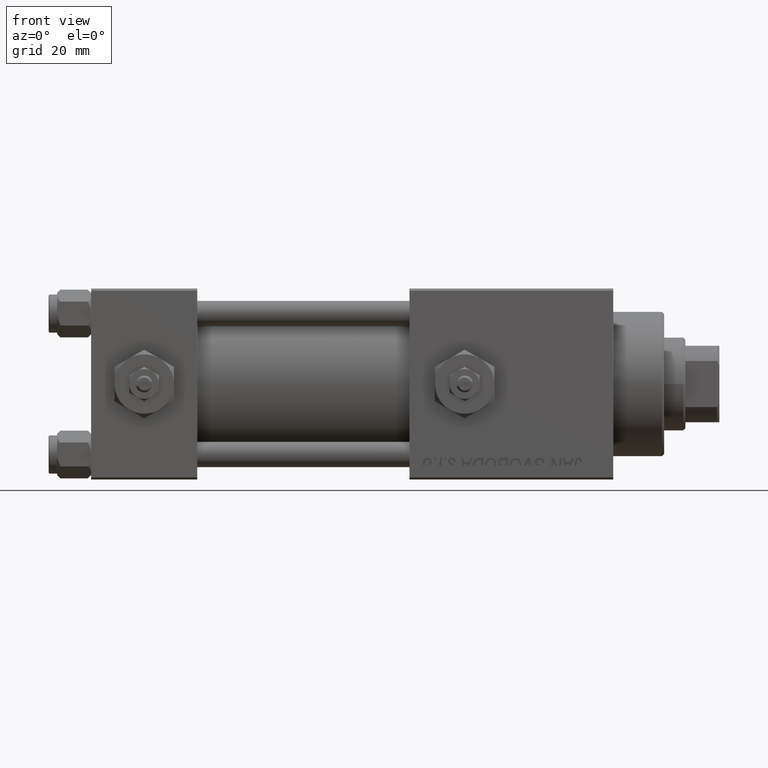
[diagram: clean part render]
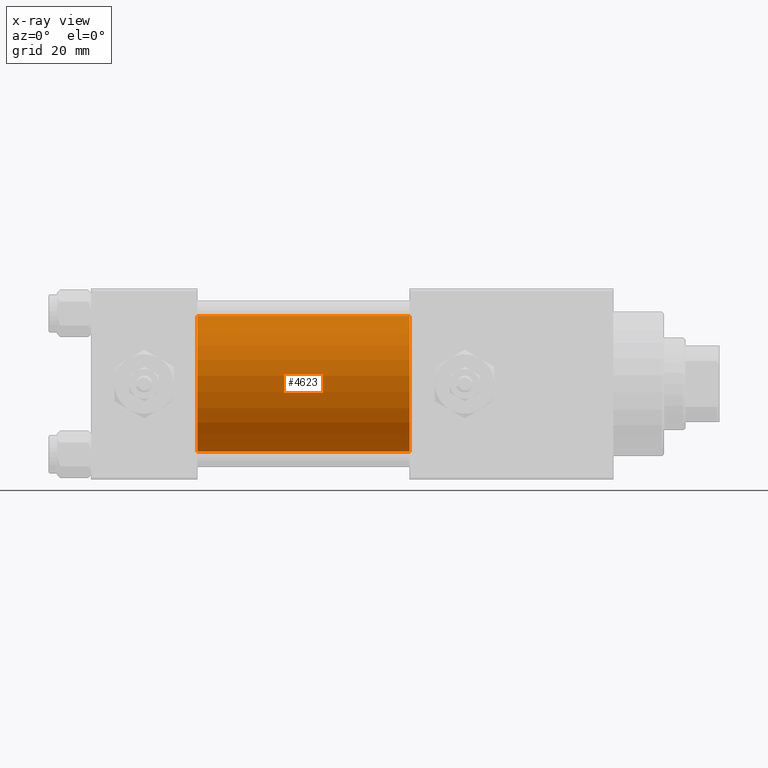
[diagram: x-ray — body ghosted, one internal face saturated and labeled with its STEP entity id]
A machine part, front view, then the same camera in x-ray: the body is ghosted and one INTERNAL B-rep face — a face not visible from any outside direction — is saturated and labeled: STEP entity #4623.
In plain terms, the highlighted cylindrical surface (partial cylindrical patch) has radius 16 mm, axis along (-1, -0, -0).
Its self-contained STEP definition (entity closure, byte-faithful):
#2117 = FACE_OUTER_BOUND ( 'NONE', #37450, .T. ) ;
#3248 = DIRECTION ( 'NONE',  ( 1.000000000000000000, 0.000000000000000000, 0.000000000000000000 ) ) ;
#4615 = LINE ( 'NONE', #49684, #12824 ) ;
#4623 = ADVANCED_FACE ( 'NONE', ( #2117 ), #18220, .F. ) ;
#6047 = VERTEX_POINT ( 'NONE', #11310 ) ;
#6295 = CIRCLE ( 'NONE', #11389, 16.00000000000000000 ) ;
#8407 = EDGE_CURVE ( 'NONE', #31739, #11296, #35475, .T. ) ;
#11296 = VERTEX_POINT ( 'NONE', #13542 ) ;
#11310 = CARTESIAN_POINT ( 'NONE',  ( 75.00000000000001421, -2.602085213965210642E-15, 16.00000000000000000 ) ) ;
#11389 = AXIS2_PLACEMENT_3D ( 'NONE', #18574, #3248, #50752 ) ;
#12371 = VERTEX_POINT ( 'NONE', #51790 ) ;
#12638 = EDGE_CURVE ( 'NONE', #6047, #31739, #28979, .T. ) ;
#12824 = VECTOR ( 'NONE', #20706, 1000.000000000000000 ) ;
#13542 = CARTESIAN_POINT ( 'NONE',  ( 25.00000000000000000, -6.426503353294456087E-16, -16.00000000000000000 ) ) ;
#14783 = DIRECTION ( 'NONE',  ( -1.000000000000000000, -0.000000000000000000, -0.000000000000000000 ) ) ;
#15069 = CARTESIAN_POINT ( 'NONE',  ( 75.00000000000001421, -2.602085213965210642E-15, 0.000000000000000000 ) ) ;
#18220 = CYLINDRICAL_SURFACE ( 'NONE', #47389, 16.00000000000000000 ) ;
#18574 = CARTESIAN_POINT ( 'NONE',  ( 25.00000000000000000, -2.602085213965210642E-15, 0.000000000000000000 ) ) ;
#20706 = DIRECTION ( 'NONE',  ( -1.000000000000000000, -0.000000000000000000, -0.000000000000000000 ) ) ;
#21092 = DIRECTION ( 'NONE',  ( 0.000000000000000000, 0.000000000000000000, -1.000000000000000000 ) ) ;
#23863 = CARTESIAN_POINT ( 'NONE',  ( 75.00000000000001421, -6.426503353294456087E-16, -16.00000000000000000 ) ) ;
#28979 = CIRCLE ( 'NONE', #35747, 16.00000000000000000 ) ;
#30794 = EDGE_CURVE ( 'NONE', #6047, #12371, #4615, .T. ) ;
#31739 = VERTEX_POINT ( 'NONE', #50402 ) ;
#33720 = ORIENTED_EDGE ( 'NONE', *, *, #12638, .T. ) ;
#33858 = ORIENTED_EDGE ( 'NONE', *, *, #30794, .F. ) ;
#34826 = CARTESIAN_POINT ( 'NONE',  ( 75.00000000000001421, -2.602085213965210642E-15, 0.000000000000000000 ) ) ;
#35475 = LINE ( 'NONE', #23863, #49894 ) ;
#35747 = AXIS2_PLACEMENT_3D ( 'NONE', #15069, #36159, #21092 ) ;
#36159 = DIRECTION ( 'NONE',  ( 1.000000000000000000, 0.000000000000000000, 0.000000000000000000 ) ) ;
#37435 = EDGE_CURVE ( 'NONE', #12371, #11296, #6295, .T. ) ;
#37450 = EDGE_LOOP ( 'NONE', ( #33720, #42455, #39799, #33858 ) ) ;
#39799 = ORIENTED_EDGE ( 'NONE', *, *, #37435, .F. ) ;
#42455 = ORIENTED_EDGE ( 'NONE', *, *, #8407, .T. ) ;
#45657 = DIRECTION ( 'NONE',  ( 0.000000000000000000, 0.000000000000000000, 1.000000000000000000 ) ) ;
#47389 = AXIS2_PLACEMENT_3D ( 'NONE', #34826, #14783, #45657 ) ;
#49684 = CARTESIAN_POINT ( 'NONE',  ( 75.00000000000001421, -2.602085213965210642E-15, 16.00000000000000000 ) ) ;
#49894 = VECTOR ( 'NONE', #51564, 1000.000000000000000 ) ;
#50402 = CARTESIAN_POINT ( 'NONE',  ( 75.00000000000001421, -6.426503353294456087E-16, -16.00000000000000000 ) ) ;
#50752 = DIRECTION ( 'NONE',  ( 0.000000000000000000, 0.000000000000000000, -1.000000000000000000 ) ) ;
#51564 = DIRECTION ( 'NONE',  ( -1.000000000000000000, -0.000000000000000000, -0.000000000000000000 ) ) ;
#51790 = CARTESIAN_POINT ( 'NONE',  ( 25.00000000000000000, -2.602085213965210642E-15, 16.00000000000000000 ) ) ;